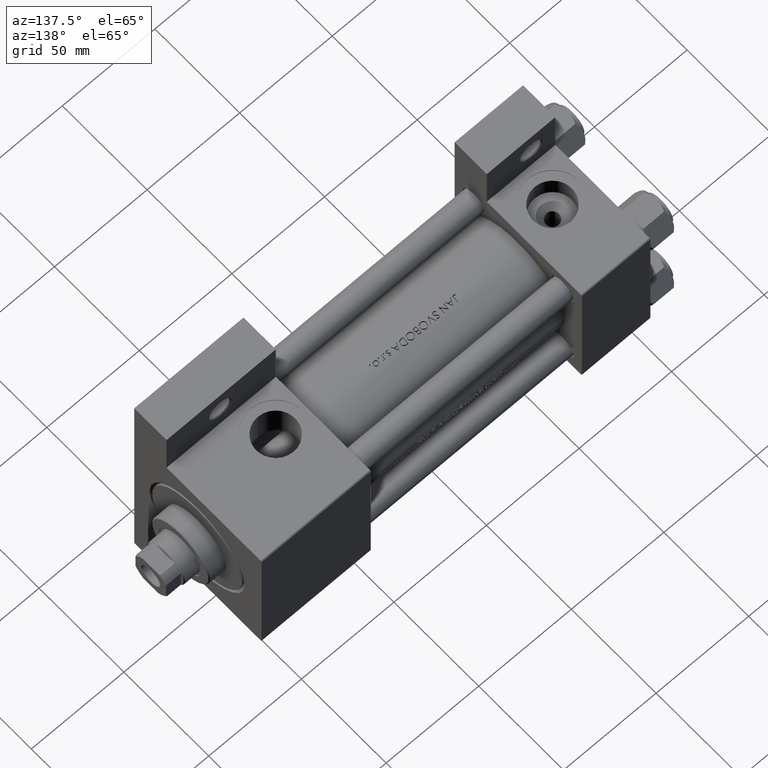
[diagram: clean part render]
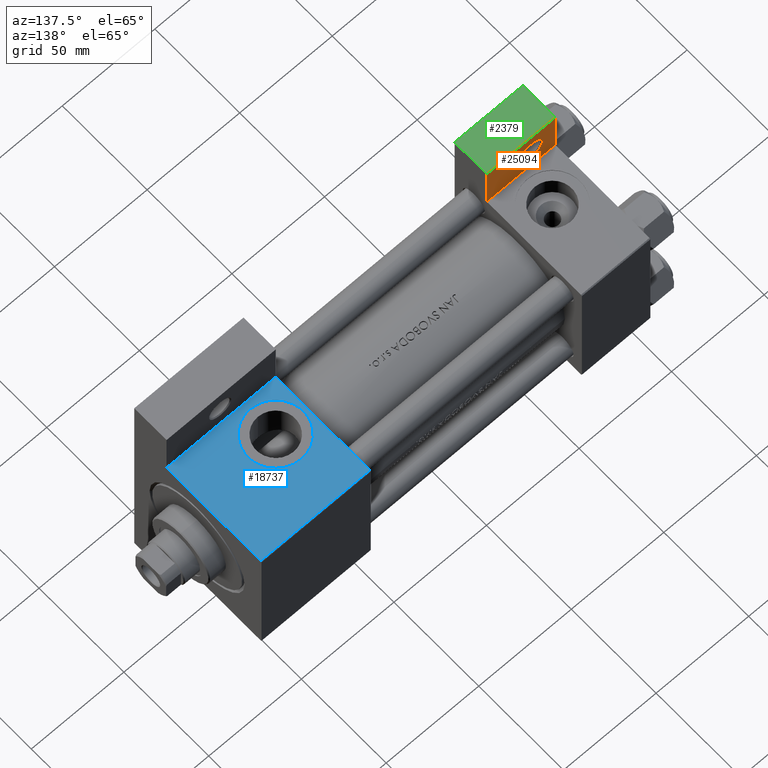
[diagram: same view with three faces highlighted in distinct colors, each labeled with its STEP entity id]
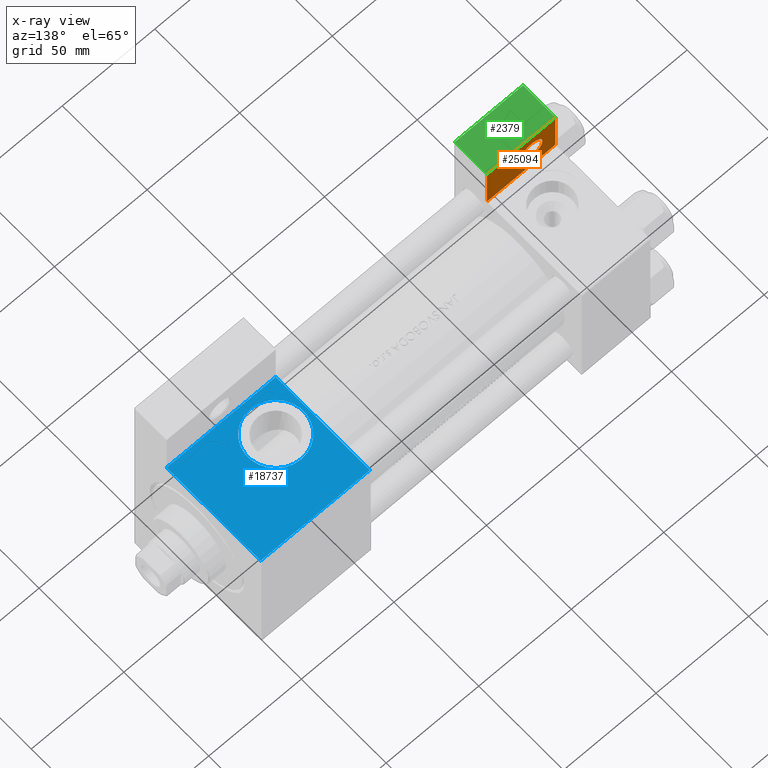
[diagram: x-ray of the same camera — body ghosted, the three highlighted faces saturated]
A machine part, auxiliary view with three faces highlighted in distinct colors.
The next image is the same camera in x-ray (body ghosted, the three faces saturated) — at least one of them is partly hidden behind the body in this view.
Their STEP definitions:

[orange] entity #25094 — the highlighted planar face has unit normal (0, -1, 0).
#825 = CARTESIAN_POINT ( 'NONE',  ( 0.000000000000000000, 0.000000000000000000, -18.50000000000000000 ) ) ;
#1321 = DIRECTION ( 'NONE',  ( -1.000000000000000000, 0.000000000000000000, -0.000000000000000000 ) ) ;
#1475 = EDGE_LOOP ( 'NONE', ( #42159, #20818, #19761, #19695 ) ) ;
#2499 = EDGE_CURVE ( 'NONE', #47489, #20940, #9880, .T. ) ;
#3762 = DIRECTION ( 'NONE',  ( -1.000000000000000000, 0.000000000000000000, 0.000000000000000000 ) ) ;
#4321 = PLANE ( 'NONE',  #28577 ) ;
#4385 = AXIS2_PLACEMENT_3D ( 'NONE', #16858, #31814, #35794 ) ;
#4568 = FACE_OUTER_BOUND ( 'NONE', #1475, .T. ) ;
#5464 = EDGE_LOOP ( 'NONE', ( #45170, #11385 ) ) ;
#5806 = CARTESIAN_POINT ( 'NONE',  ( 3.977209754999747208E-16, -63.50000000000000000, -18.50000000000000355 ) ) ;
#8049 = CIRCLE ( 'NONE', #38292, 5.999500000000050015 ) ;
#8534 = VERTEX_POINT ( 'NONE', #27530 ) ;
#9640 = CARTESIAN_POINT ( 'NONE',  ( -7.145701223179000102E-16, -37.50000000000001421, -18.49999999999999645 ) ) ;
#9880 = LINE ( 'NONE', #9640, #15828 ) ;
#11385 = ORIENTED_EDGE ( 'NONE', *, *, #34677, .T. ) ;
#11734 = CARTESIAN_POINT ( 'NONE',  ( 12.99999999999999822, -51.00000000000002132, -18.50000000000000000 ) ) ;
#12298 = CARTESIAN_POINT ( 'NONE',  ( 37.00000000000000000, -37.50000000000000000, -18.50000000000000355 ) ) ;
#13523 = DIRECTION ( 'NONE',  ( 1.000000000000000000, 0.000000000000000000, 0.000000000000000000 ) ) ;
#15489 = CARTESIAN_POINT ( 'NONE',  ( 7.000499999999947320, -51.00000000000002132, -18.50000000000000000 ) ) ;
#15828 = VECTOR ( 'NONE', #40532, 1000.000000000000000 ) ;
#16837 = CARTESIAN_POINT ( 'NONE',  ( -7.145701223179004046E-16, -37.50000000000000711, -18.50000000000000355 ) ) ;
#16858 = CARTESIAN_POINT ( 'NONE',  ( 12.99999999999999822, -51.00000000000002132, -18.50000000000000000 ) ) ;
#17024 = LINE ( 'NONE', #5806, #42891 ) ;
#17300 = EDGE_CURVE ( 'NONE', #26358, #47489, #25290, .T. ) ;
#18031 = DIRECTION ( 'NONE',  ( -0.000000000000000000, 1.000000000000000000, 0.000000000000000000 ) ) ;
#18139 = VERTEX_POINT ( 'NONE', #15489 ) ;
#18532 = VERTEX_POINT ( 'NONE', #19122 ) ;
#19122 = CARTESIAN_POINT ( 'NONE',  ( 18.99950000000004735, -51.00000000000002132, -18.50000000000000000 ) ) ;
#19695 = ORIENTED_EDGE ( 'NONE', *, *, #25308, .T. ) ;
#19761 = ORIENTED_EDGE ( 'NONE', *, *, #41272, .T. ) ;
#20818 = ORIENTED_EDGE ( 'NONE', *, *, #2499, .T. ) ;
#20940 = VERTEX_POINT ( 'NONE', #16837 ) ;
#21295 = CARTESIAN_POINT ( 'NONE',  ( 37.00000000000000000, -63.49999999999998579, -18.50000000000000355 ) ) ;
#25094 = ADVANCED_FACE ( 'NONE', ( #34978, #4568 ), #4321, .F. ) ;
#25290 = LINE ( 'NONE', #21295, #35593 ) ;
#25308 = EDGE_CURVE ( 'NONE', #8534, #26358, #17024, .T. ) ;
#26358 = VERTEX_POINT ( 'NONE', #43632 ) ;
#27530 = CARTESIAN_POINT ( 'NONE',  ( 3.977209754999747208E-16, -63.50000000000000000, -18.50000000000000355 ) ) ;
#28577 = AXIS2_PLACEMENT_3D ( 'NONE', #825, #31253, #1321 ) ;
#29783 = DIRECTION ( 'NONE',  ( 4.278042683914906889E-17, -1.000000000000000000, 0.000000000000000000 ) ) ;
#31253 = DIRECTION ( 'NONE',  ( 0.000000000000000000, 0.000000000000000000, -1.000000000000000000 ) ) ;
#31814 = DIRECTION ( 'NONE',  ( 0.000000000000000000, 0.000000000000000000, -1.000000000000000000 ) ) ;
#33267 = CARTESIAN_POINT ( 'NONE',  ( 3.977209754999744250E-16, -63.49999999999998579, -18.50000000000000355 ) ) ;
#34677 = EDGE_CURVE ( 'NONE', #18139, #18532, #8049, .T. ) ;
#34978 = FACE_BOUND ( 'NONE', #5464, .T. ) ;
#35593 = VECTOR ( 'NONE', #18031, 1000.000000000000000 ) ;
#35794 = DIRECTION ( 'NONE',  ( -1.000000000000000000, 0.000000000000000000, 0.000000000000000000 ) ) ;
#37817 = CIRCLE ( 'NONE', #4385, 5.999500000000050015 ) ;
#37909 = DIRECTION ( 'NONE',  ( 0.000000000000000000, 0.000000000000000000, -1.000000000000000000 ) ) ;
#38292 = AXIS2_PLACEMENT_3D ( 'NONE', #11734, #37909, #3762 ) ;
#40532 = DIRECTION ( 'NONE',  ( -1.000000000000000000, 0.000000000000000000, 0.000000000000000000 ) ) ;
#41272 = EDGE_CURVE ( 'NONE', #20940, #8534, #49171, .T. ) ;
#42159 = ORIENTED_EDGE ( 'NONE', *, *, #17300, .T. ) ;
#42891 = VECTOR ( 'NONE', #13523, 1000.000000000000000 ) ;
#43632 = CARTESIAN_POINT ( 'NONE',  ( 37.00000000000000000, -63.50000000000000000, -18.50000000000000355 ) ) ;
#44783 = VECTOR ( 'NONE', #29783, 1000.000000000000000 ) ;
#45170 = ORIENTED_EDGE ( 'NONE', *, *, #47055, .T. ) ;
#47055 = EDGE_CURVE ( 'NONE', #18532, #18139, #37817, .T. ) ;
#47489 = VERTEX_POINT ( 'NONE', #12298 ) ;
#49171 = LINE ( 'NONE', #33267, #44783 ) ;

[blue] entity #18737 — the highlighted planar face has unit normal (0, -0, -1).
#1650 = LINE ( 'NONE', #16862, #9174 ) ;
#1792 = ORIENTED_EDGE ( 'NONE', *, *, #27472, .F. ) ;
#2250 = CARTESIAN_POINT ( 'NONE',  ( 151.0000000000000000, -37.50000000000000000, 36.99999999999997868 ) ) ;
#2438 = EDGE_CURVE ( 'NONE', #23494, #25886, #42554, .T. ) ;
#3194 = CARTESIAN_POINT ( 'NONE',  ( 167.9999999999999716, -37.50000000000000000, 15.00000000000002842 ) ) ;
#4452 = CARTESIAN_POINT ( 'NONE',  ( 210.0000000000000000, -37.50000000000000000, 36.99999999999997868 ) ) ;
#4489 = DIRECTION ( 'NONE',  ( 0.000000000000000000, 0.000000000000000000, -1.000000000000000000 ) ) ;
#4914 = FACE_BOUND ( 'NONE', #46843, .T. ) ;
#5931 = EDGE_CURVE ( 'NONE', #36072, #25886, #24645, .T. ) ;
#6154 = AXIS2_PLACEMENT_3D ( 'NONE', #16546, #23789, #9301 ) ;
#7133 = AXIS2_PLACEMENT_3D ( 'NONE', #8960, #42863, #4489 ) ;
#8299 = CARTESIAN_POINT ( 'NONE',  ( 210.0000000000000000, -37.50000000000000711, -18.50000000000000355 ) ) ;
#8386 = PLANE ( 'NONE',  #10944 ) ;
#8960 = CARTESIAN_POINT ( 'NONE',  ( 167.9999999999999716, -37.50000000000000000, 3.469446951953615767E-15 ) ) ;
#9174 = VECTOR ( 'NONE', #31572, 1000.000000000000000 ) ;
#9301 = DIRECTION ( 'NONE',  ( 0.000000000000000000, 0.000000000000000000, -1.000000000000000000 ) ) ;
#9952 = VECTOR ( 'NONE', #30887, 1000.000000000000000 ) ;
#10944 = AXIS2_PLACEMENT_3D ( 'NONE', #31840, #27607, #24620 ) ;
#13459 = VECTOR ( 'NONE', #20388, 1000.000000000000000 ) ;
#13559 = VECTOR ( 'NONE', #20893, 1000.000000000000000 ) ;
#13608 = CARTESIAN_POINT ( 'NONE',  ( 151.0000000000000000, -37.50000000000000000, -18.50000000000000000 ) ) ;
#13801 = EDGE_CURVE ( 'NONE', #34775, #23494, #1650, .T. ) ;
#13849 = CARTESIAN_POINT ( 'NONE',  ( 210.0000000000000000, -37.50000000000000000, 36.99999999999997868 ) ) ;
#14888 = CIRCLE ( 'NONE', #6154, 15.00000000000002487 ) ;
#16546 = CARTESIAN_POINT ( 'NONE',  ( 167.9999999999999716, -37.50000000000000000, 3.469446951953615767E-15 ) ) ;
#16862 = CARTESIAN_POINT ( 'NONE',  ( 151.0000000000000000, -37.50000000000000000, 37.49999999999997868 ) ) ;
#18737 = ADVANCED_FACE ( 'NONE', ( #4914, #19869 ), #8386, .F. ) ;
#19869 = FACE_OUTER_BOUND ( 'NONE', #34902, .T. ) ;
#20246 = VERTEX_POINT ( 'NONE', #3194 ) ;
#20388 = DIRECTION ( 'NONE',  ( 1.000000000000000000, -3.528251137579945613E-16, 0.000000000000000000 ) ) ;
#20893 = DIRECTION ( 'NONE',  ( 0.000000000000000000, -9.251858538542972814E-17, -1.000000000000000000 ) ) ;
#22265 = ORIENTED_EDGE ( 'NONE', *, *, #13801, .T. ) ;
#22483 = EDGE_CURVE ( 'NONE', #20246, #35135, #14888, .T. ) ;
#23494 = VERTEX_POINT ( 'NONE', #13608 ) ;
#23789 = DIRECTION ( 'NONE',  ( 0.000000000000000000, -1.000000000000000000, -8.673617379884036705E-17 ) ) ;
#24620 = DIRECTION ( 'NONE',  ( 0.000000000000000000, 9.251858538542972814E-17, 1.000000000000000000 ) ) ;
#24645 = LINE ( 'NONE', #39824, #13559 ) ;
#25886 = VERTEX_POINT ( 'NONE', #8299 ) ;
#26124 = ORIENTED_EDGE ( 'NONE', *, *, #46765, .T. ) ;
#27002 = ORIENTED_EDGE ( 'NONE', *, *, #2438, .T. ) ;
#27472 = EDGE_CURVE ( 'NONE', #35135, #20246, #44520, .T. ) ;
#27607 = DIRECTION ( 'NONE',  ( 0.000000000000000000, 1.000000000000000000, -9.251858538542972814E-17 ) ) ;
#30887 = DIRECTION ( 'NONE',  ( -1.000000000000000000, 0.000000000000000000, 0.000000000000000000 ) ) ;
#31572 = DIRECTION ( 'NONE',  ( 0.000000000000000000, -9.251858538542972814E-17, -1.000000000000000000 ) ) ;
#31607 = CARTESIAN_POINT ( 'NONE',  ( 151.0000000000000000, -37.50000000000000000, -18.50000000000000000 ) ) ;
#31840 = CARTESIAN_POINT ( 'NONE',  ( 210.0000000000000000, -37.50000000000000000, 37.49999999999997868 ) ) ;
#34308 = CARTESIAN_POINT ( 'NONE',  ( 167.9999999999999716, -37.50000000000000000, -15.00000000000002132 ) ) ;
#34775 = VERTEX_POINT ( 'NONE', #2250 ) ;
#34902 = EDGE_LOOP ( 'NONE', ( #48786, #26124, #22265, #27002 ) ) ;
#35135 = VERTEX_POINT ( 'NONE', #34308 ) ;
#36072 = VERTEX_POINT ( 'NONE', #13849 ) ;
#38593 = LINE ( 'NONE', #4452, #9952 ) ;
#39824 = CARTESIAN_POINT ( 'NONE',  ( 210.0000000000000000, -37.50000000000000000, 37.49999999999997868 ) ) ;
#42554 = LINE ( 'NONE', #31607, #13459 ) ;
#42863 = DIRECTION ( 'NONE',  ( 0.000000000000000000, -1.000000000000000000, -8.673617379884036705E-17 ) ) ;
#44520 = CIRCLE ( 'NONE', #7133, 15.00000000000002487 ) ;
#44871 = ORIENTED_EDGE ( 'NONE', *, *, #22483, .F. ) ;
#46765 = EDGE_CURVE ( 'NONE', #36072, #34775, #38593, .T. ) ;
#46843 = EDGE_LOOP ( 'NONE', ( #1792, #44871 ) ) ;
#48786 = ORIENTED_EDGE ( 'NONE', *, *, #5931, .F. ) ;

[green] entity #2379 — the highlighted planar face has unit normal (0, 0, 1).
#1202 = DIRECTION ( 'NONE',  ( -1.000000000000000000, -0.000000000000000000, -0.000000000000000000 ) ) ;
#2379 = ADVANCED_FACE ( 'NONE', ( #7177 ), #15641, .T. ) ;
#5806 = CARTESIAN_POINT ( 'NONE',  ( 3.977209754999747208E-16, -63.50000000000000000, -18.50000000000000355 ) ) ;
#7177 = FACE_OUTER_BOUND ( 'NONE', #18584, .T. ) ;
#7663 = DIRECTION ( 'NONE',  ( 0.000000000000000000, -1.000000000000000000, 1.734723475976806848E-16 ) ) ;
#8478 = VERTEX_POINT ( 'NONE', #48927 ) ;
#8534 = VERTEX_POINT ( 'NONE', #27530 ) ;
#10496 = CARTESIAN_POINT ( 'NONE',  ( 37.00000000000000000, -63.50000000000000000, -37.49999999999999289 ) ) ;
#11181 = LINE ( 'NONE', #30390, #18427 ) ;
#12789 = EDGE_CURVE ( 'NONE', #29394, #8478, #11181, .T. ) ;
#13523 = DIRECTION ( 'NONE',  ( 1.000000000000000000, 0.000000000000000000, 0.000000000000000000 ) ) ;
#13968 = DIRECTION ( 'NONE',  ( 0.000000000000000000, -1.734723475976806848E-16, -1.000000000000000000 ) ) ;
#15036 = AXIS2_PLACEMENT_3D ( 'NONE', #15393, #7663, #34841 ) ;
#15393 = CARTESIAN_POINT ( 'NONE',  ( 3.977209754999747208E-16, -63.49999999999998579, 26.72167621838007889 ) ) ;
#15641 = PLANE ( 'NONE',  #15036 ) ;
#17024 = LINE ( 'NONE', #5806, #42891 ) ;
#17720 = CARTESIAN_POINT ( 'NONE',  ( 37.00000000000000000, -63.49999999999998579, 26.72167621838007889 ) ) ;
#18427 = VECTOR ( 'NONE', #1202, 1000.000000000000000 ) ;
#18584 = EDGE_LOOP ( 'NONE', ( #27488, #46100, #38829, #27605 ) ) ;
#21300 = EDGE_CURVE ( 'NONE', #26358, #29394, #40394, .T. ) ;
#23630 = VECTOR ( 'NONE', #13968, 1000.000000000000000 ) ;
#25308 = EDGE_CURVE ( 'NONE', #8534, #26358, #17024, .T. ) ;
#26358 = VERTEX_POINT ( 'NONE', #43632 ) ;
#27488 = ORIENTED_EDGE ( 'NONE', *, *, #25308, .F. ) ;
#27530 = CARTESIAN_POINT ( 'NONE',  ( 3.977209754999747208E-16, -63.50000000000000000, -18.50000000000000355 ) ) ;
#27605 = ORIENTED_EDGE ( 'NONE', *, *, #21300, .F. ) ;
#29394 = VERTEX_POINT ( 'NONE', #10496 ) ;
#29539 = LINE ( 'NONE', #44711, #32249 ) ;
#30390 = CARTESIAN_POINT ( 'NONE',  ( 3.977209754999747208E-16, -63.50000000000000000, -37.49999999999999289 ) ) ;
#32249 = VECTOR ( 'NONE', #41710, 1000.000000000000000 ) ;
#34841 = DIRECTION ( 'NONE',  ( 0.000000000000000000, -1.734723475976806848E-16, -1.000000000000000000 ) ) ;
#38829 = ORIENTED_EDGE ( 'NONE', *, *, #12789, .F. ) ;
#40394 = LINE ( 'NONE', #17720, #23630 ) ;
#41710 = DIRECTION ( 'NONE',  ( 0.000000000000000000, -1.734723475976806848E-16, -1.000000000000000000 ) ) ;
#42891 = VECTOR ( 'NONE', #13523, 1000.000000000000000 ) ;
#43632 = CARTESIAN_POINT ( 'NONE',  ( 37.00000000000000000, -63.50000000000000000, -18.50000000000000355 ) ) ;
#44711 = CARTESIAN_POINT ( 'NONE',  ( 3.977209754999747208E-16, -63.49999999999998579, 26.72167621838007889 ) ) ;
#46100 = ORIENTED_EDGE ( 'NONE', *, *, #47271, .T. ) ;
#47271 = EDGE_CURVE ( 'NONE', #8534, #8478, #29539, .T. ) ;
#48927 = CARTESIAN_POINT ( 'NONE',  ( 3.977209754999747208E-16, -63.50000000000000000, -37.49999999999999289 ) ) ;